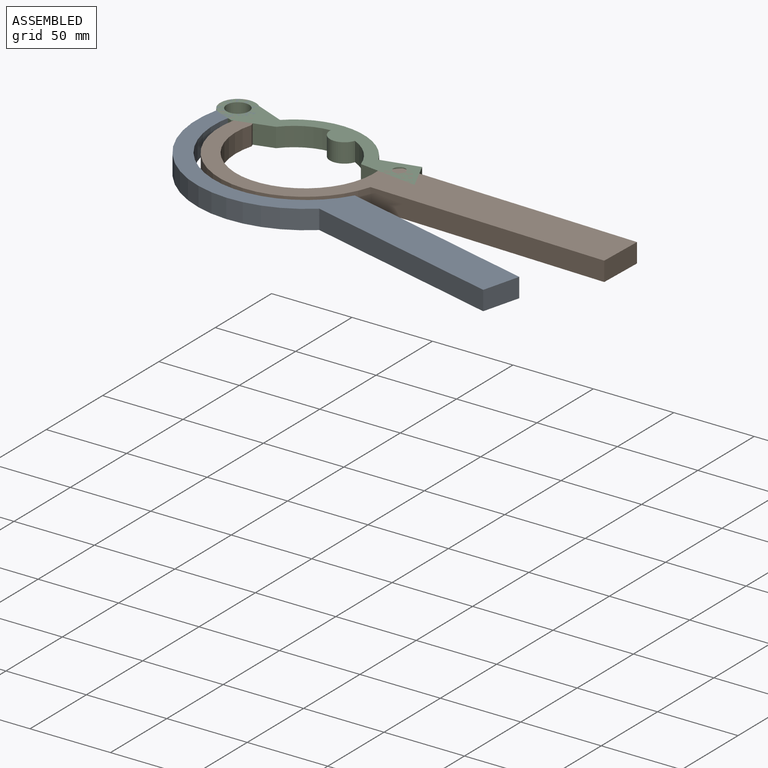
[diagram: assembled view]
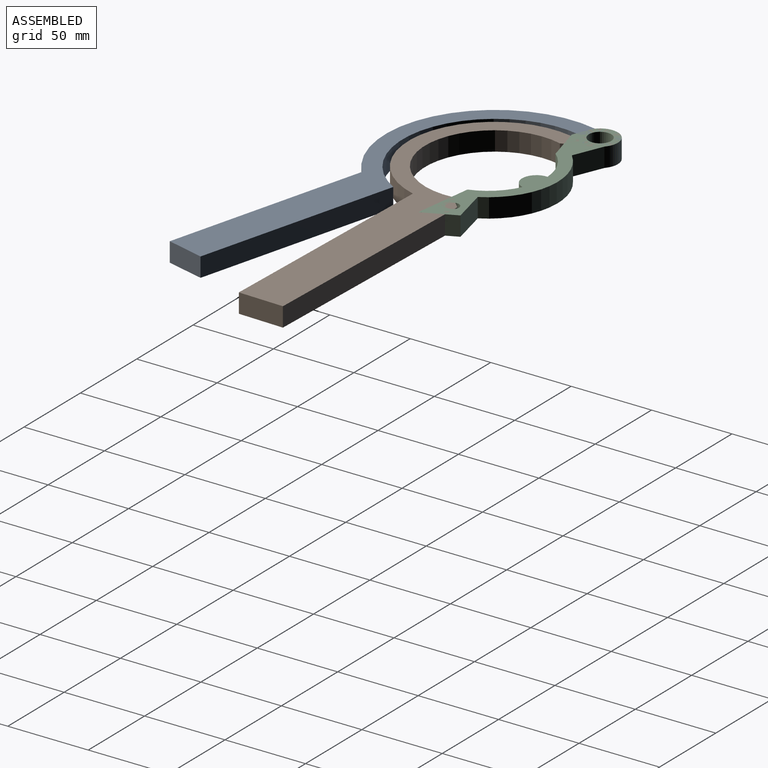
[diagram: assembled view, second angle]
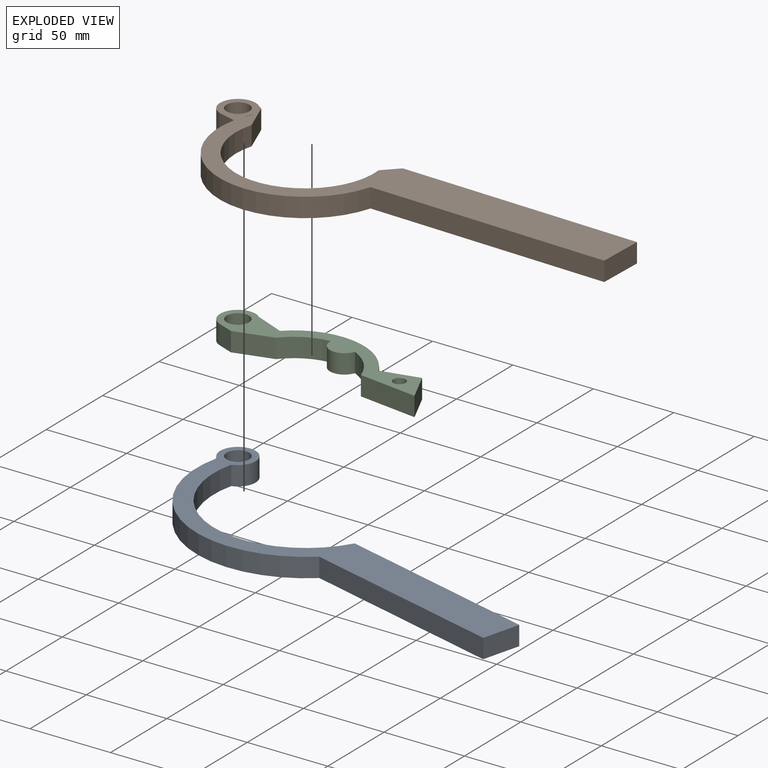
[diagram: exploded view]
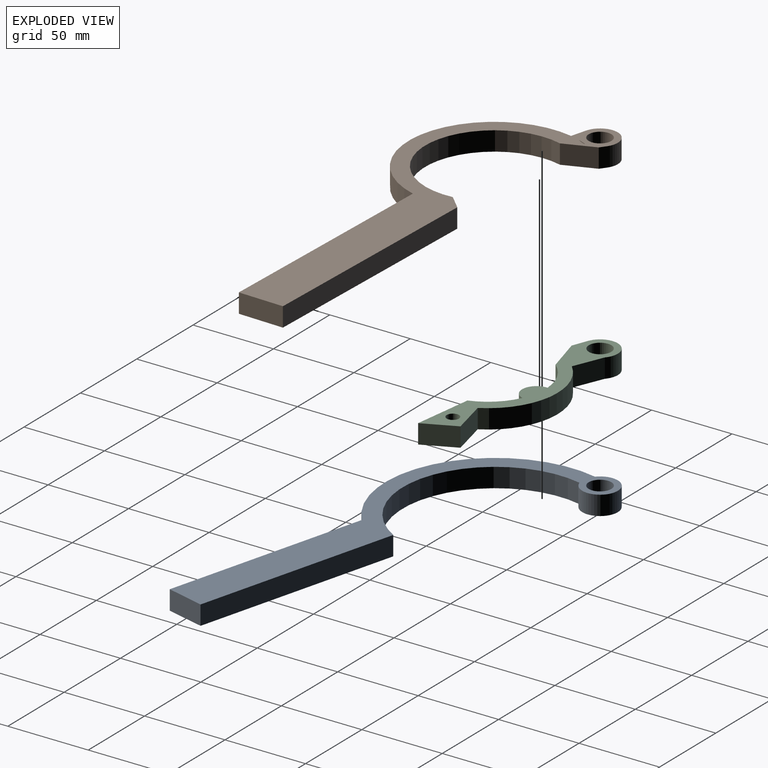
[diagram: exploded view, second angle]
ASSEMBLY  parts=3 mates=2
PART A: 9 faces, bbox 246.5x114.9x12 mm
  f0: cylinder r=57.48mm len=107.93mm, axis (0,0,-1), area 1969.9mm2, adj f1,f5,f7,f8
  f1: cylinder r=11.03mm len=22.05mm, axis (0,0,-1), area 696.5mm2, adj f0,f2,f7,f8
  f2: cylinder r=68.23mm len=113.46mm, axis (0,0,-1), area 2052.2mm2, adj f1,f3,f7,f8
  f3: plane 125x30.11mm, normal (-0.23,-0.97,0), area 1542.9mm2, adj f2,f4,f7,f8
  f4: plane 23.47x12mm, normal (0.97,-0.23,0), area 289.6mm2, adj f3,f5,f7,f8
  f5: plane 125.42x30.21mm, normal (0.23,0.97,0), area 1548.1mm2, adj f0,f4,f7,f8
  f6: cylinder r=7.06mm len=14.12mm, axis (0,0,-1), area 532.5mm2, adj f7,f8
  f7: plane 246.48x114.92mm, normal (0,0,1), area 5113.1mm2, adj f0,f1,f2,f3,f4,f5,f6
  f8: plane 246.48x114.92mm, normal (0,0,-1), area 5113.1mm2, adj f0,f1,f2,f3,f4,f5,f6
PART B: 15 faces, bbox 270.5x87x12 mm
  f0: cylinder r=11.03mm len=12mm, axis (0,0,-1), area 73.5mm2, adj f10,f13,f14
  f1: plane 148.67x12mm, normal (0,1,0), area 1784.1mm2, adj f2,f11,f13,f14
  f2: plane 12x9.17mm, normal (-0.73,0.68,0), area 149.9mm2, adj f1,f3,f13,f14
  f3: cylinder r=43.06mm len=86.12mm, axis (0,0,-1), area 1814.9mm2, adj f2,f4,f13,f14
  f4: plane 18.79x12mm, normal (0.92,0.39,0), area 244.6mm2, adj f3,f5,f13,f14
  f5: plane 12x3.64mm, normal (0.57,0.82,0), area 53.1mm2, adj f4,f6,f13,f14
  f6: cylinder r=11.03mm len=21.75mm, axis (0,0,-1), area 464.7mm2, adj f5,f7,f13,f14
  f7: plane 12x9.78mm, normal (-0.23,-0.97,0), area 120.7mm2, adj f6,f8,f13,f14
  f8: cylinder r=53.23mm len=104.75mm, axis (0,0,-1), area 1960.3mm2, adj f7,f9,f13,f14
  f9: plane 148.36x12mm, normal (0,-1,0), area 1780.3mm2, adj f8,f11,f13,f14
  f10: cylinder r=53.23mm len=12mm, axis (0,0,-1), area 72.6mm2, adj f0,f13,f14
  f11: plane 27.98x12mm, normal (1,0,0), area 335.7mm2, adj f1,f9,f13,f14
  f12: cylinder r=7.06mm len=14.12mm, axis (0,0,-1), area 532.5mm2, adj f13,f14
  f13: plane 270.47x86.95mm, normal (0,0,1), area 6190.2mm2, adj f0,f1,f2,f3,f4,f5,f6,f7
  f14: plane 270.47x86.95mm, normal (0,0,-1), area 6190.2mm2, adj f0,f1,f2,f3,f4,f5,f6,f7
PART C: 15 faces, bbox 139.9x33.7x12 mm
  f0: cylinder r=8.97mm len=17.76mm, axis (0,0,-1), area 310.9mm2, adj f1,f11,f13,f14
  f1: cylinder r=35.62mm len=21.18mm, axis (0,0,-1), area 347.1mm2, adj f0,f2,f13,f14
  f2: plane 37.07x12mm, normal (0,-1,0), area 444.8mm2, adj f1,f3,f13,f14
  f3: plane 18.5x12mm, normal (0.84,0.54,0), area 262.9mm2, adj f2,f4,f13,f14
  f4: plane 22.3x12mm, normal (-0.36,0.93,0), area 286.7mm2, adj f3,f5,f13,f14
  f5: cylinder r=43.31mm len=69.36mm, axis (0,0,-1), area 965.4mm2, adj f4,f6,f13,f14
  f6: plane 19.23x12mm, normal (0.26,0.97,0), area 238.8mm2, adj f5,f7,f13,f14
  f7: cylinder r=11.03mm len=21.75mm, axis (0,0,-1), area 464.7mm2, adj f6,f8,f13,f14
  f8: plane 12x9.78mm, normal (-0.23,-0.97,0), area 120.7mm2, adj f7,f9,f13,f14
  f9: plane 22.42x12mm, normal (0.39,-0.92,0), area 292.3mm2, adj f8,f11,f13,f14
  f10: cylinder r=6.99mm len=13.98mm, axis (0,0,-1), area 527.1mm2, adj f13,f14
  f11: cylinder r=35.62mm len=23.25mm, axis (0,0,-1), area 347.1mm2, adj f0,f9,f13,f14
  f12: cylinder r=3.81mm len=12mm, axis (0,0,-1), area 287.1mm2, adj f13,f14
  f13: plane 139.92x33.73mm, normal (0,0,1), area 1618mm2, adj f0,f1,f2,f3,f4,f5,f6,f7
  f14: plane 139.92x33.73mm, normal (0,0,-1), area 1618mm2, adj f0,f1,f2,f3,f4,f5,f6,f7
PLACE A rot(axis=(0,0,-1),1deg) t=(-316.72,11.63,-66.65)mm fixed
PLACE B rot(axis=(0,0,-1),1.7deg) t=(-22.66,76.55,-66.65)mm
PLACE C rot(axis=(0,0,-1),7.6deg) t=(-298.86,188.65,-66.65)mm
MATE revolute B.f0 <-> A.f1  axis (0,0,-1) through (-81.54,100.98,-66.65)mm
MATE revolute B.f0 <-> C.f7  axis (0,0,1) through (-81.54,100.98,-54.65)mm
